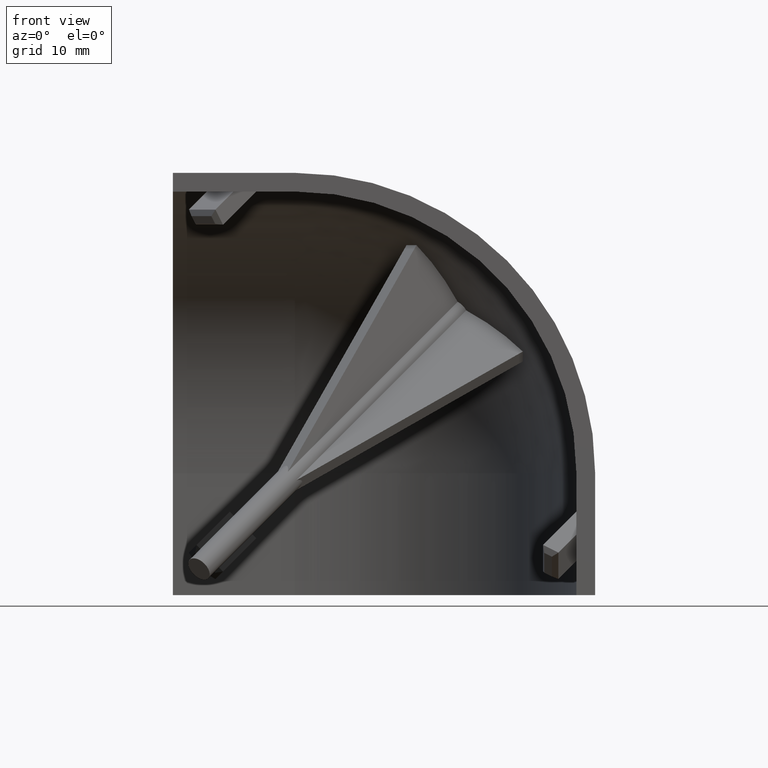
[diagram: clean part render]
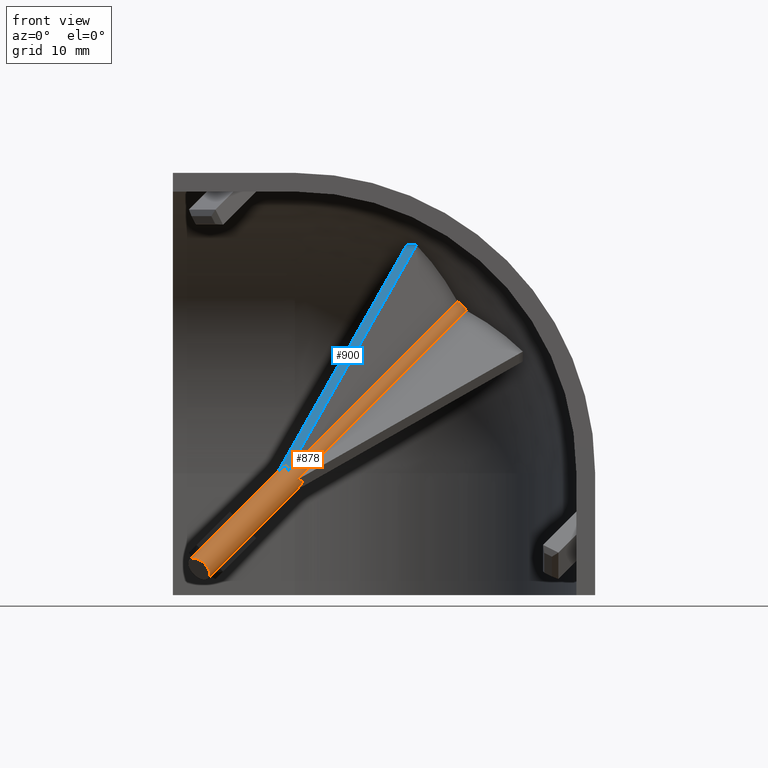
[diagram: same view with the hole feature highlighted: cylindrical wall and planar end face, labeled with their STEP entity ids]
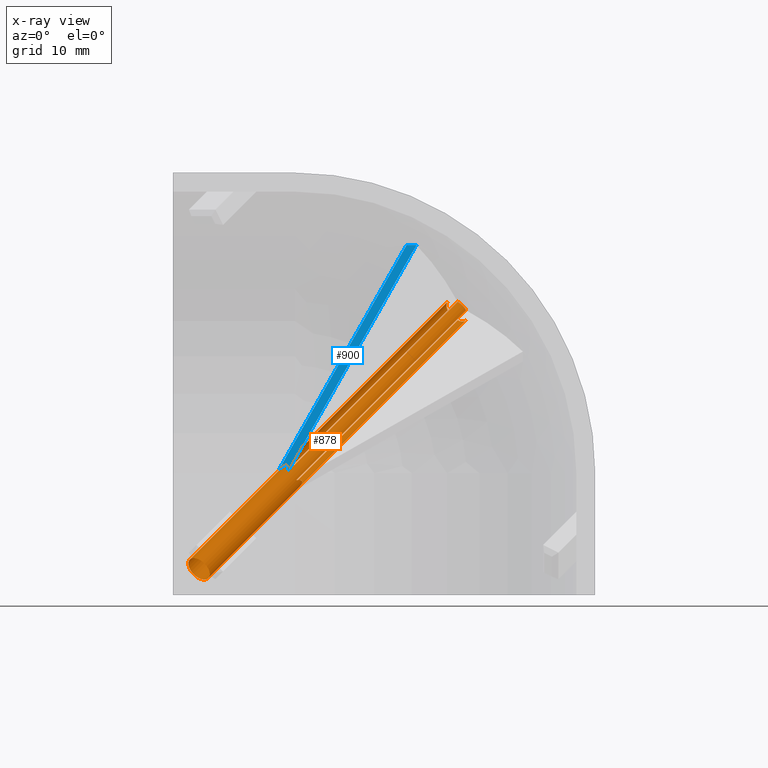
[diagram: x-ray of the same camera — body ghosted, the hole faces saturated]
A machine part, front view. The highlighted faces form one hole feature of diameter 2.8 mm: the cylindrical wall (entity #878, orange) and its adjacent planar end face (entity #900, blue) — they share a circular edge in the B-rep.
The next image is the same camera in x-ray (body ghosted, the hole faces saturated) — the bore reads through the body.
Wall:
#65=FACE_BOUND($,#327,.T.);
#70=LINE($,#1300,#169);
#71=LINE($,#1304,#170);
#72=LINE($,#1308,#171);
#73=LINE($,#1312,#172);
#74=LINE($,#1316,#173);
#75=LINE($,#1319,#174);
#169=VECTOR($,#1029,31.3487743008794);
#170=VECTOR($,#1032,31.3487742680335);
#171=VECTOR($,#1035,31.3487743130592);
#172=VECTOR($,#1038,31.348774313059);
#173=VECTOR($,#1041,31.3487743130594);
#174=VECTOR($,#1044,31.3487743130592);
#268=ELLIPSE($,#938,5.09339588938347,1.40000009909664);
#269=ELLIPSE($,#940,5.09339619645517,1.40000015972746);
#270=ELLIPSE($,#942,5.09339540071324,1.40000000000002);
#271=FACE_OUTER_BOUND($,#326,.T.);
#326=EDGE_LOOP($,(#617));
#327=EDGE_LOOP($,(#618,#619,#620,#621,#622,#623,#624,#625,#626,#627,#628,
#629));
#386=CIRCLE($,#937,1.4);
#387=CIRCLE($,#939,1.4);
#388=CIRCLE($,#941,1.4);
#389=CIRCLE($,#943,1.4);
#411=VERTEX_POINT($,#1294);
#412=VERTEX_POINT($,#1296);
#413=VERTEX_POINT($,#1297);
#414=VERTEX_POINT($,#1299);
#415=VERTEX_POINT($,#1301);
#416=VERTEX_POINT($,#1303);
#417=VERTEX_POINT($,#1305);
#418=VERTEX_POINT($,#1307);
#419=VERTEX_POINT($,#1309);
#420=VERTEX_POINT($,#1311);
#421=VERTEX_POINT($,#1313);
#422=VERTEX_POINT($,#1315);
#423=VERTEX_POINT($,#1317);
#490=EDGE_CURVE($,#411,#411,#386,.T.);
#491=EDGE_CURVE($,#412,#413,#268,.T.);
#492=EDGE_CURVE($,#412,#414,#70,.T.);
#493=EDGE_CURVE($,#415,#414,#387,.T.);
#494=EDGE_CURVE($,#416,#415,#71,.T.);
#495=EDGE_CURVE($,#417,#416,#269,.T.);
#496=EDGE_CURVE($,#417,#418,#72,.T.);
#497=EDGE_CURVE($,#419,#418,#388,.T.);
#498=EDGE_CURVE($,#420,#419,#73,.T.);
#499=EDGE_CURVE($,#421,#420,#270,.T.);
#500=EDGE_CURVE($,#421,#422,#74,.T.);
#501=EDGE_CURVE($,#423,#422,#389,.T.);
#502=EDGE_CURVE($,#413,#423,#75,.T.);
#617=ORIENTED_EDGE($,*,*,#490,.T.);
#618=ORIENTED_EDGE($,*,*,#491,.F.);
#619=ORIENTED_EDGE($,*,*,#492,.T.);
#620=ORIENTED_EDGE($,*,*,#493,.F.);
#621=ORIENTED_EDGE($,*,*,#494,.F.);
#622=ORIENTED_EDGE($,*,*,#495,.F.);
#623=ORIENTED_EDGE($,*,*,#496,.T.);
#624=ORIENTED_EDGE($,*,*,#497,.F.);
#625=ORIENTED_EDGE($,*,*,#498,.F.);
#626=ORIENTED_EDGE($,*,*,#499,.F.);
#627=ORIENTED_EDGE($,*,*,#500,.T.);
#628=ORIENTED_EDGE($,*,*,#501,.F.);
#629=ORIENTED_EDGE($,*,*,#502,.F.);
#871=CYLINDRICAL_SURFACE($,#936,1.4);
#878=ADVANCED_FACE($,(#271,#65),#871,.T.);
#936=AXIS2_PLACEMENT_3D($,#1293,#1023,#1024);
#937=AXIS2_PLACEMENT_3D($,#1295,#1025,#1026);
#938=AXIS2_PLACEMENT_3D($,#1298,#1027,#1028);
#939=AXIS2_PLACEMENT_3D($,#1302,#1030,#1031);
#940=AXIS2_PLACEMENT_3D($,#1306,#1033,#1034);
#941=AXIS2_PLACEMENT_3D($,#1310,#1036,#1037);
#942=AXIS2_PLACEMENT_3D($,#1314,#1039,#1040);
#943=AXIS2_PLACEMENT_3D($,#1318,#1042,#1043);
#1023=DIRECTION('center_axis',(0.577350269189624,0.577350269189624,-0.57735026918963));
#1024=DIRECTION('ref_axis',(-0.707106781186551,-6.40987562127853E-017,-0.707106781186544));
#1025=DIRECTION('center_axis',(0.577350269189624,0.577350269189624,-0.57735026918963));
#1026=DIRECTION('ref_axis',(-0.707106781186551,-6.40987562127853E-017,-0.707106781186544));
#1027=DIRECTION('center_axis',(0.551217453555649,0.551217453556672,0.626353444781877));
#1028=DIRECTION('ref_axis',(-0.442898757804549,-0.44289877864509,0.779539198635884));
#1029=DIRECTION($,(0.577350269189624,0.577350269189624,-0.57735026918963));
#1030=DIRECTION('center_axis',(0.577350269189624,0.577350269189624,-0.57735026918963));
#1031=DIRECTION('ref_axis',(0.707106781186551,6.40987562127852E-017,0.707106781186544));
#1032=DIRECTION($,(0.577350269189624,0.577350269189624,-0.57735026918963));
#1033=DIRECTION('center_axis',(-0.626353444778685,0.551217453564603,-0.551217453551345));
#1034=DIRECTION('ref_axis',(0.779539198638448,0.442898784973294,-0.44289875147183));
#1035=DIRECTION($,(0.577350269189624,0.577350269189624,-0.57735026918963));
#1036=DIRECTION('center_axis',(0.577350269189624,0.577350269189624,-0.57735026918963));
#1037=DIRECTION('ref_axis',(0.707106781186551,6.40987562127852E-017,0.707106781186544));
#1038=DIRECTION($,(0.577350269189624,0.577350269189624,-0.57735026918963));
#1039=DIRECTION('center_axis',(0.551217453556038,-0.626353444782071,-0.551217453556063));
#1040=DIRECTION('ref_axis',(0.442898768224948,0.779539198635728,-0.442898768224964));
#1041=DIRECTION($,(0.577350269189624,0.577350269189624,-0.57735026918963));
#1042=DIRECTION('center_axis',(0.577350269189624,0.577350269189624,-0.57735026918963));
#1043=DIRECTION('ref_axis',(0.70710678118655,1.70899131969916E-015,0.707106781186545));
#1044=DIRECTION($,(0.577350269189624,0.577350269189624,-0.57735026918963));
#1293=CARTESIAN_POINT('Origin',(2.78632794954076,2.78632794954076,-2.7863279495408));
#1294=CARTESIAN_POINT('',(1.79637845587959,2.78632794954076,-3.77627744320196));
#1295=CARTESIAN_POINT('Origin',(2.78632794954076,2.78632794954076,-2.7863279495408));
#1296=CARTESIAN_POINT('',(12.2501300915973,11.1894699023155,-13.1676432237397));
#1297=CARTESIAN_POINT('',(11.1894699051099,12.2501300768897,-13.167643214557));
#1298=CARTESIAN_POINT('Origin',(9.81495442009279,9.81495430496123,-9.81495420009717));
#1299=CARTESIAN_POINT('',(30.3493533652992,29.2886931935193,-31.2668665029666));
#1300=CARTESIAN_POINT($,(12.2501300768897,11.1894699051098,-13.1676432145569));
#1301=CARTESIAN_POINT('',(31.2668665029663,29.2886931935194,-30.3493533652995));
#1302=CARTESIAN_POINT('Origin',(30.3016376872806,30.3016376872806,-30.3016376872239));
#1303=CARTESIAN_POINT('',(13.1676432478459,11.1894699161628,-12.2501301105347));
#1304=CARTESIAN_POINT($,(13.167643214557,11.18946990511,-12.2501300768899));
#1305=CARTESIAN_POINT('',(13.1676432145568,12.2501300768897,-11.1894699051099));
#1306=CARTESIAN_POINT('Origin',(9.81495396323283,9.81495413591604,-9.81495432003085));
#1307=CARTESIAN_POINT('',(31.2668665029663,30.3493533652992,-29.2886931935196));
#1308=CARTESIAN_POINT($,(13.1676432145568,12.2501300768897,-11.18946990511));
#1309=CARTESIAN_POINT('',(30.3493533652992,31.2668665029663,-29.2886931935197));
#1310=CARTESIAN_POINT('Origin',(30.3016376872806,30.3016376872806,-30.3016376872239));
#1311=CARTESIAN_POINT('',(12.2501300768897,13.1676432145569,-11.1894699051101));
#1312=CARTESIAN_POINT($,(12.2501300768898,13.1676432145569,-11.1894699051101));
#1313=CARTESIAN_POINT('',(11.1894699051097,13.1676432145567,-12.2501300768898));
#1314=CARTESIAN_POINT('Origin',(9.81495457622345,9.81495457622326,-9.81495457622348));
#1315=CARTESIAN_POINT('',(29.2886931935194,31.2668665029663,-30.3493533652995));
#1316=CARTESIAN_POINT($,(11.1894699051098,13.1676432145567,-12.2501300768897));
#1317=CARTESIAN_POINT('',(29.2886931935194,30.3493533652991,-31.2668665029666));
#1318=CARTESIAN_POINT('Origin',(30.3016376872806,30.3016376872806,-30.3016376872239));
#1319=CARTESIAN_POINT($,(11.1894699051099,12.2501300768897,-13.167643214557));
End face:
#30=PLANE($,#986);
#117=LINE($,#1446,#216);
#118=LINE($,#1447,#217);
#216=VECTOR($,#1172,30.9555790759953);
#217=VECTOR($,#1173,30.9555790759949);
#270=ELLIPSE($,#942,5.09339540071324,1.40000000000002);
#293=FACE_OUTER_BOUND($,#353,.T.);
#353=EDGE_LOOP($,(#743,#744,#745,#746));
#396=CIRCLE($,#951,29.9616539883931);
#420=VERTEX_POINT($,#1311);
#421=VERTEX_POINT($,#1313);
#429=VERTEX_POINT($,#1331);
#430=VERTEX_POINT($,#1333);
#499=EDGE_CURVE($,#421,#420,#270,.T.);
#509=EDGE_CURVE($,#429,#430,#396,.T.);
#565=EDGE_CURVE($,#421,#429,#117,.T.);
#566=EDGE_CURVE($,#420,#430,#118,.T.);
#743=ORIENTED_EDGE($,*,*,#509,.F.);
#744=ORIENTED_EDGE($,*,*,#565,.F.);
#745=ORIENTED_EDGE($,*,*,#499,.T.);
#746=ORIENTED_EDGE($,*,*,#566,.T.);
#900=ADVANCED_FACE($,(#293),#30,.T.);
#942=AXIS2_PLACEMENT_3D($,#1314,#1039,#1040);
#951=AXIS2_PLACEMENT_3D($,#1334,#1059,#1060);
#986=AXIS2_PLACEMENT_3D($,#1445,#1170,#1171);
#1039=DIRECTION('center_axis',(0.551217453556038,-0.626353444782071,-0.551217453556063));
#1040=DIRECTION('ref_axis',(0.442898768224948,0.779539198635728,-0.442898768224964));
#1059=DIRECTION('center_axis',(0.55121745355604,-0.626353444782076,-0.551217453556055));
#1060=DIRECTION('ref_axis',(-2.73519133342325E-014,-0.660645741583926,0.750697811457463));
#1170=DIRECTION('center_axis',(-0.55121745355604,0.626353444782076,0.551217453556055));
#1171=DIRECTION('ref_axis',(0.707106781186558,0.,0.707106781186537));
#1172=DIRECTION($,(0.442898768224956,0.779539198635724,-0.442898768224963));
#1173=DIRECTION($,(0.442898768224956,0.779539198635724,-0.442898768224963));
#1311=CARTESIAN_POINT('',(12.2501300768897,13.1676432145569,-11.1894699051101));
#1313=CARTESIAN_POINT('',(11.1894699051097,13.1676432145567,-12.2501300768898));
#1314=CARTESIAN_POINT('Origin',(9.81495457622345,9.81495457622326,-9.81495457622348));
#1331=CARTESIAN_POINT('',(24.8996577475583,37.2987305207628,-25.9603179193386));
#1333=CARTESIAN_POINT('',(25.9603179193381,37.2987305207628,-24.8996577475587));
#1334=CARTESIAN_POINT('Origin',(12.16416632954,13.9497654607634,-12.1641663295399));
#1445=CARTESIAN_POINT('Origin',(30.3621919826909,45.0464002503352,-29.3015318109116));
#1446=CARTESIAN_POINT($,(11.1894699051097,13.1676432145566,-12.2501300768898));
#1447=CARTESIAN_POINT($,(12.2501300768897,13.1676432145569,-11.1894699051101));